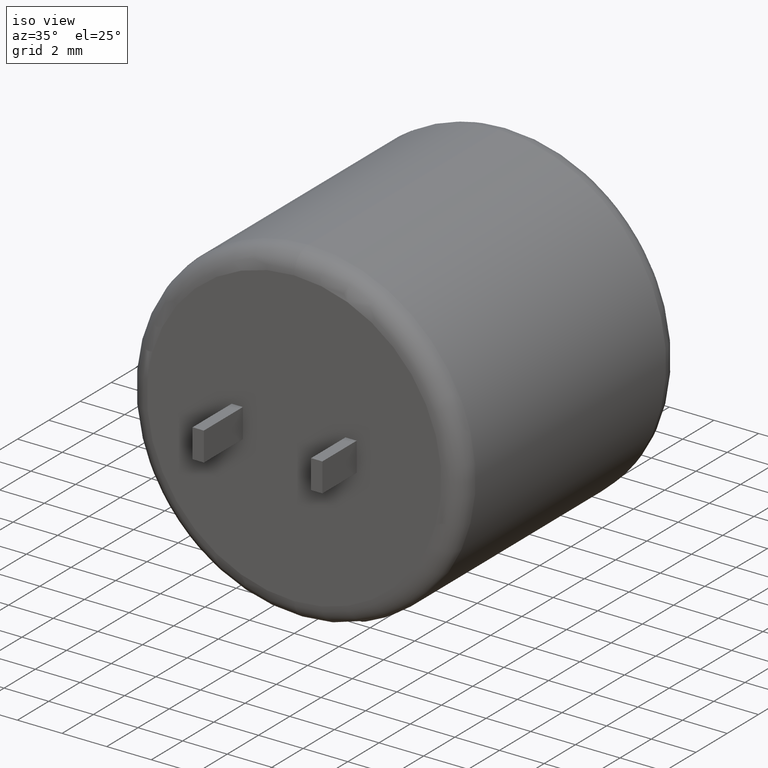
[diagram: clean part render]
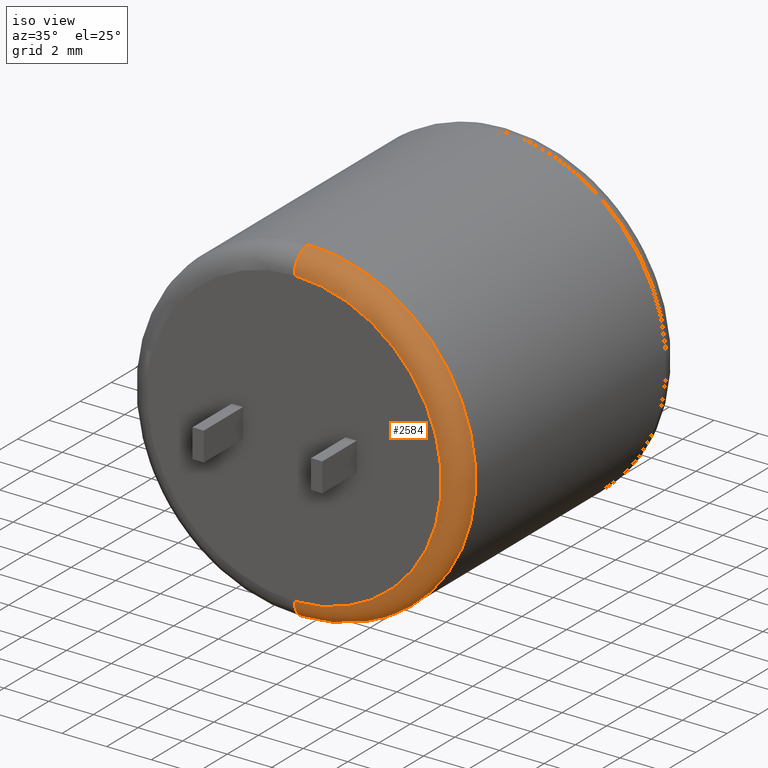
[diagram: same view with one face highlighted and labeled with its STEP entity id]
A machine part, iso view. The second image highlights one B-rep face of the part: STEP entity #2584.
In plain terms, the highlighted toroidal blend (fillet) surface has major radius 6.597 mm and minor (blend) radius 0.903 mm.
Its self-contained STEP definition (entity closure, byte-faithful):
#17 = CARTESIAN_POINT ( 'NONE',  ( 9.184850993605147900E-016, 0.9029999999999992500, 7.500000000000000000 ) ) ;
#22 = DIRECTION ( 'NONE',  ( 0.0000000000000000000, 0.0000000000000000000, 1.000000000000000000 ) ) ;
#45 = VERTEX_POINT ( 'NONE', #1398 ) ;
#157 = CIRCLE ( 'NONE', #981, 6.596999999999999500 ) ;
#239 = DIRECTION ( 'NONE',  ( 0.0000000000000000000, 1.000000000000000000, 0.0000000000000000000 ) ) ;
#250 = CARTESIAN_POINT ( 'NONE',  ( 0.0000000000000000000, 0.0000000000000000000, 0.0000000000000000000 ) ) ;
#287 = AXIS2_PLACEMENT_3D ( 'NONE', #1931, #2348, #2122 ) ;
#413 = AXIS2_PLACEMENT_3D ( 'NONE', #2549, #2145, #1288 ) ;
#464 = DIRECTION ( 'NONE',  ( -0.0000000000000000000, -1.000000000000000000, -0.0000000000000000000 ) ) ;
#546 = EDGE_CURVE ( 'NONE', #1080, #45, #1448, .T. ) ;
#674 = ORIENTED_EDGE ( 'NONE', *, *, #1252, .F. ) ;
#695 = DIRECTION ( 'NONE',  ( -1.000000000000000000, 0.0000000000000000000, 0.0000000000000000000 ) ) ;
#885 = AXIS2_PLACEMENT_3D ( 'NONE', #1355, #695, #2166 ) ;
#981 = AXIS2_PLACEMENT_3D ( 'NONE', #250, #464, #2600 ) ;
#1016 = ORIENTED_EDGE ( 'NONE', *, *, #546, .F. ) ;
#1080 = VERTEX_POINT ( 'NONE', #17 ) ;
#1105 = EDGE_CURVE ( 'NONE', #2206, #45, #2525, .T. ) ;
#1252 = EDGE_CURVE ( 'NONE', #2206, #1345, #157, .T. ) ;
#1288 = DIRECTION ( 'NONE',  ( 1.224646799147352500E-016, 0.0000000000000000000, -1.000000000000000000 ) ) ;
#1345 = VERTEX_POINT ( 'NONE', #2545 ) ;
#1355 = CARTESIAN_POINT ( 'NONE',  ( 0.0000000000000000000, 0.9029999999999992500, 6.596999999999999500 ) ) ;
#1398 = CARTESIAN_POINT ( 'NONE',  ( 0.0000000000000000000, 0.9029999999999992500, -7.500000000000000000 ) ) ;
#1419 = TOROIDAL_SURFACE ( 'NONE', #287, 6.596999999999999500, 0.9030000000000000200 ) ;
#1448 = CIRCLE ( 'NONE', #1963, 7.500000000000000000 ) ;
#1477 = CIRCLE ( 'NONE', #885, 0.9030000000000001400 ) ;
#1759 = EDGE_CURVE ( 'NONE', #1345, #1080, #1477, .T. ) ;
#1911 = CARTESIAN_POINT ( 'NONE',  ( 0.0000000000000000000, 0.9029999999999992500, 0.0000000000000000000 ) ) ;
#1931 = CARTESIAN_POINT ( 'NONE',  ( 0.0000000000000000000, 0.9029999999999992500, 0.0000000000000000000 ) ) ;
#1942 = ORIENTED_EDGE ( 'NONE', *, *, #1105, .T. ) ;
#1963 = AXIS2_PLACEMENT_3D ( 'NONE', #1911, #239, #22 ) ;
#2095 = ORIENTED_EDGE ( 'NONE', *, *, #1759, .F. ) ;
#2122 = DIRECTION ( 'NONE',  ( 0.0000000000000000000, 0.0000000000000000000, 1.000000000000000000 ) ) ;
#2145 = DIRECTION ( 'NONE',  ( 1.000000000000000000, -0.0000000000000000000, 1.224646799147353200E-016 ) ) ;
#2166 = DIRECTION ( 'NONE',  ( 0.0000000000000000000, 0.0000000000000000000, 1.000000000000000000 ) ) ;
#2206 = VERTEX_POINT ( 'NONE', #2653 ) ;
#2214 = EDGE_LOOP ( 'NONE', ( #674, #1942, #1016, #2095 ) ) ;
#2348 = DIRECTION ( 'NONE',  ( 0.0000000000000000000, 1.000000000000000000, 0.0000000000000000000 ) ) ;
#2525 = CIRCLE ( 'NONE', #413, 0.9030000000000001400 ) ;
#2545 = CARTESIAN_POINT ( 'NONE',  ( 0.0000000000000000000, 0.0000000000000000000, 6.596999999999999500 ) ) ;
#2549 = CARTESIAN_POINT ( 'NONE',  ( 8.078994933975089100E-016, 0.9029999999999992500, -6.596999999999999500 ) ) ;
#2584 = ADVANCED_FACE ( 'NONE', ( #2633 ), #1419, .T. ) ;
#2600 = DIRECTION ( 'NONE',  ( 0.0000000000000000000, 0.0000000000000000000, 1.000000000000000000 ) ) ;
#2633 = FACE_OUTER_BOUND ( 'NONE', #2214, .T. ) ;
#2653 = CARTESIAN_POINT ( 'NONE',  ( 8.631922963790118000E-016, 0.0000000000000000000, -6.596999999999999500 ) ) ;